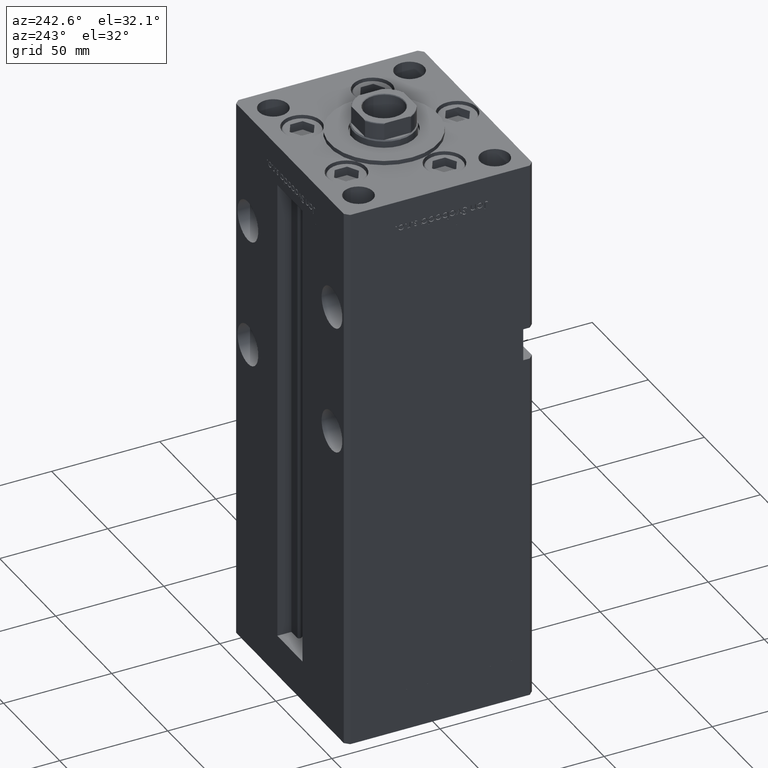
[diagram: clean part render]
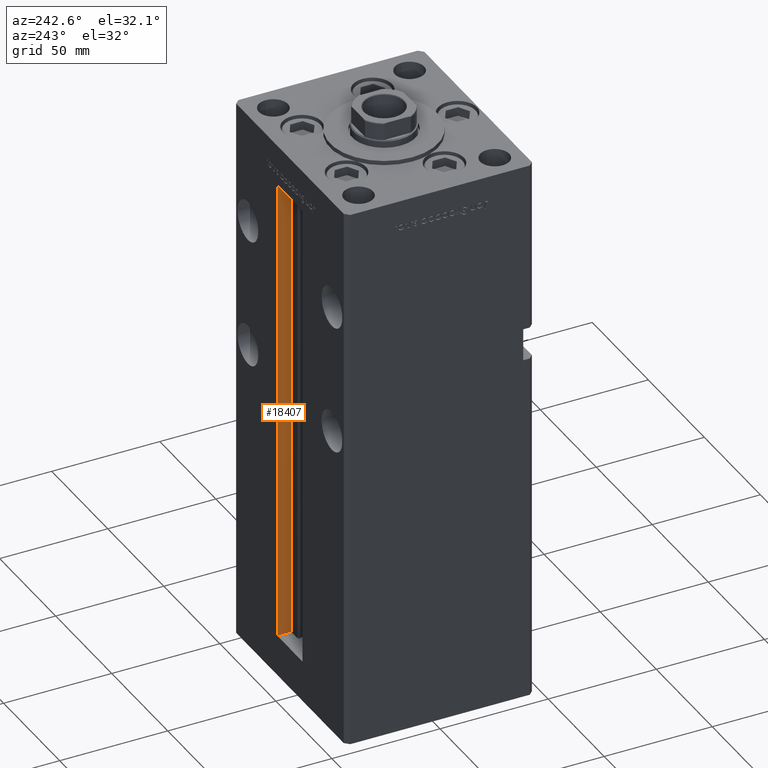
[diagram: same view with one face highlighted and labeled with its STEP entity id]
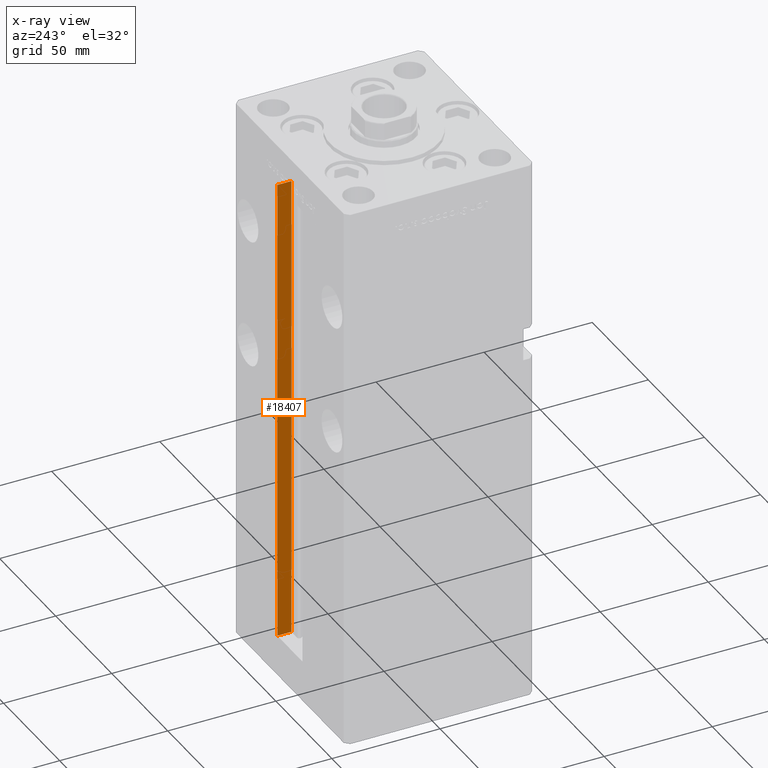
[diagram: x-ray of the same camera — body ghosted, the highlighted face saturated]
A machine part, auxiliary view. The second image highlights one B-rep face of the part: STEP entity #18407.
The next image is the same camera in x-ray: the body ghosted, the highlighted face saturated — about 0% of this face is hidden behind the body in this view.
In plain terms, the highlighted planar face has unit normal (1, 0, 0).
Its self-contained STEP definition (entity closure, byte-faithful):
#3337 = DIRECTION ( 'NONE',  ( 1.000000000000000000, -0.000000000000000000, 0.000000000000000000 ) ) ;
#3595 = DIRECTION ( 'NONE',  ( 0.000000000000000000, 0.000000000000000000, -1.000000000000000000 ) ) ;
#3736 = VERTEX_POINT ( 'NONE', #16930 ) ;
#5852 = VECTOR ( 'NONE', #28893, 1000.000000000000000 ) ;
#6441 = VECTOR ( 'NONE', #35154, 1000.000000000000000 ) ;
#6550 = VECTOR ( 'NONE', #9289, 1000.000000000000000 ) ;
#7478 = AXIS2_PLACEMENT_3D ( 'NONE', #44547, #3337, #3595 ) ;
#8944 = LINE ( 'NONE', #13771, #43581 ) ;
#9289 = DIRECTION ( 'NONE',  ( -0.000000000000000000, -0.000000000000000000, 1.000000000000000000 ) ) ;
#11239 = ORIENTED_EDGE ( 'NONE', *, *, #17617, .F. ) ;
#11388 = VERTEX_POINT ( 'NONE', #39009 ) ;
#13771 = CARTESIAN_POINT ( 'NONE',  ( 11.24999999999999645, 37.00000000000000000, 0.000000000000000000 ) ) ;
#15736 = EDGE_CURVE ( 'NONE', #11388, #3736, #50229, .T. ) ;
#16930 = CARTESIAN_POINT ( 'NONE',  ( 11.24999999999998934, 43.50000000000000000, 218.5000000000000000 ) ) ;
#17617 = EDGE_CURVE ( 'NONE', #52138, #11388, #8944, .T. ) ;
#17672 = ORIENTED_EDGE ( 'NONE', *, *, #15736, .F. ) ;
#18407 = ADVANCED_FACE ( 'NONE', ( #35936 ), #52360, .F. ) ;
#23307 = CARTESIAN_POINT ( 'NONE',  ( 11.24999999999999645, 37.00000000000000000, 0.000000000000000000 ) ) ;
#23478 = EDGE_CURVE ( 'NONE', #3736, #46274, #28620, .T. ) ;
#25697 = CARTESIAN_POINT ( 'NONE',  ( 11.24999999999999645, 37.00000000000000000, 218.5000000000000000 ) ) ;
#26777 = CARTESIAN_POINT ( 'NONE',  ( 11.24999999999999645, 37.00000000000000000, 0.000000000000000000 ) ) ;
#28620 = LINE ( 'NONE', #36982, #5852 ) ;
#28893 = DIRECTION ( 'NONE',  ( -0.000000000000000000, -1.000000000000000000, 0.000000000000000000 ) ) ;
#29586 = ORIENTED_EDGE ( 'NONE', *, *, #48826, .T. ) ;
#30909 = EDGE_LOOP ( 'NONE', ( #17672, #11239, #29586, #49175 ) ) ;
#35154 = DIRECTION ( 'NONE',  ( -0.000000000000000000, -0.000000000000000000, 1.000000000000000000 ) ) ;
#35936 = FACE_OUTER_BOUND ( 'NONE', #30909, .T. ) ;
#36982 = CARTESIAN_POINT ( 'NONE',  ( 11.24999999999999645, 0.000000000000000000, 218.5000000000000000 ) ) ;
#39009 = CARTESIAN_POINT ( 'NONE',  ( 11.24999999999999645, 43.50000000000000000, 0.000000000000000000 ) ) ;
#39180 = LINE ( 'NONE', #23307, #6441 ) ;
#42065 = DIRECTION ( 'NONE',  ( 0.000000000000000000, 1.000000000000000000, 0.000000000000000000 ) ) ;
#42409 = CARTESIAN_POINT ( 'NONE',  ( 11.24999999999999645, 43.50000000000000000, 0.000000000000000000 ) ) ;
#43581 = VECTOR ( 'NONE', #42065, 1000.000000000000000 ) ;
#44547 = CARTESIAN_POINT ( 'NONE',  ( 11.24999999999999645, 37.00000000000000000, 0.000000000000000000 ) ) ;
#46274 = VERTEX_POINT ( 'NONE', #25697 ) ;
#48826 = EDGE_CURVE ( 'NONE', #52138, #46274, #39180, .T. ) ;
#49175 = ORIENTED_EDGE ( 'NONE', *, *, #23478, .F. ) ;
#50229 = LINE ( 'NONE', #42409, #6550 ) ;
#52138 = VERTEX_POINT ( 'NONE', #26777 ) ;
#52360 = PLANE ( 'NONE',  #7478 ) ;